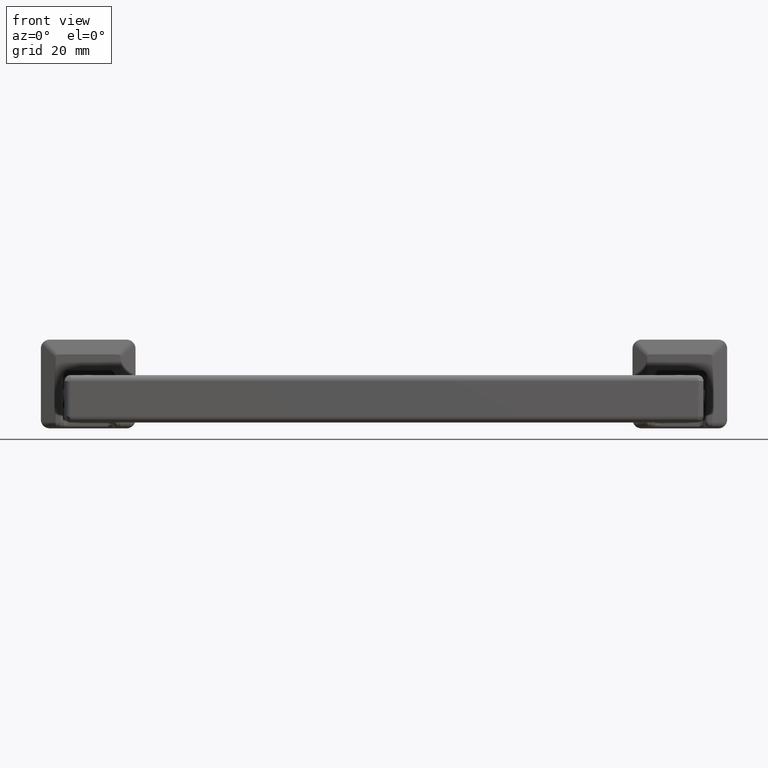
[diagram: clean part render]
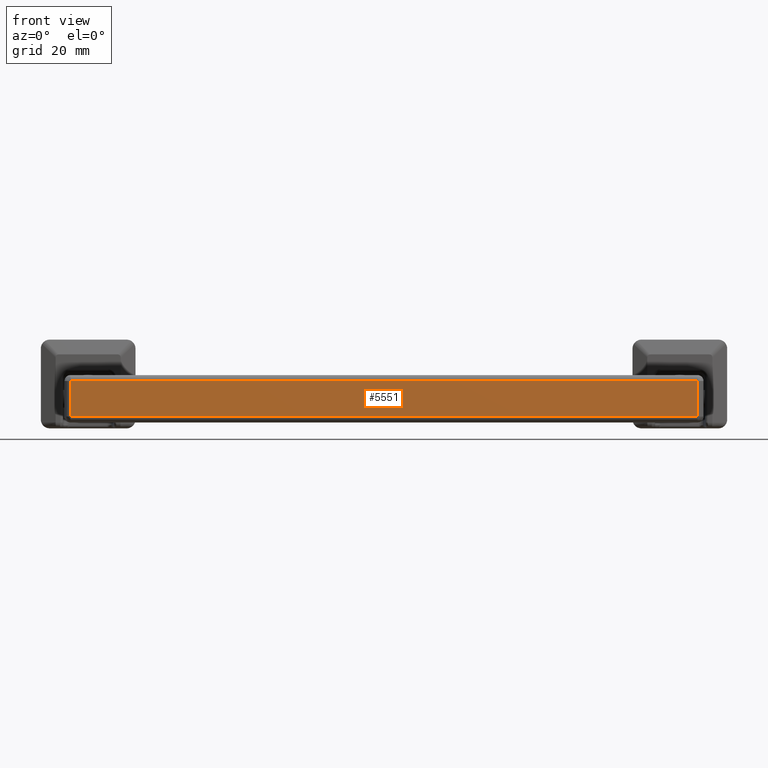
[diagram: same view with one face highlighted and labeled with its STEP entity id]
A machine part, front view. The second image highlights one B-rep face of the part: STEP entity #5551.
In plain terms, the highlighted face is a freeform B-spline surface patch.
Its self-contained STEP definition (entity closure, byte-faithful):
#4323=CARTESIAN_POINT('',(53.0,-3.0,40.0));
#4324=VERTEX_POINT('',#4323);
#4368=CARTESIAN_POINT('',(-53.0,-3.0,40.0));
#4369=VERTEX_POINT('',#4368);
#4391=CARTESIAN_POINT('',(-53.0,-3.0,40.0));
#4392=CARTESIAN_POINT('',(53.0,-3.0,40.0));
#4393=QUASI_UNIFORM_CURVE('',1,(#4391,#4392),.UNSPECIFIED.,.F.,.U.);
#4394=EDGE_CURVE('',#4369,#4324,#4393,.T.);
#5057=CARTESIAN_POINT('',(-53.0,2.999999999999890,40.0));
#5058=VERTEX_POINT('',#5057);
#5167=CARTESIAN_POINT('',(53.0,2.999999999999890,40.0));
#5168=VERTEX_POINT('',#5167);
#5190=CARTESIAN_POINT('',(53.0,2.999999999999890,40.0));
#5191=CARTESIAN_POINT('',(-53.0,2.999999999999890,40.0));
#5192=QUASI_UNIFORM_CURVE('',1,(#5190,#5191),.UNSPECIFIED.,.F.,.U.);
#5193=EDGE_CURVE('',#5168,#5058,#5192,.T.);
#5502=CARTESIAN_POINT('',(53.0,-3.0,40.0));
#5503=CARTESIAN_POINT('',(53.0,2.999999999999890,40.0));
#5504=QUASI_UNIFORM_CURVE('',1,(#5502,#5503),.UNSPECIFIED.,.F.,.U.);
#5505=EDGE_CURVE('',#4324,#5168,#5504,.T.);
#5525=CARTESIAN_POINT('',(-53.0,2.999999999999890,40.0));
#5526=CARTESIAN_POINT('',(-53.0,-3.0,40.0));
#5527=QUASI_UNIFORM_CURVE('',1,(#5525,#5526),.UNSPECIFIED.,.F.,.U.);
#5528=EDGE_CURVE('',#5058,#4369,#5527,.T.);
#5540=CARTESIAN_POINT('',(58.294699794551448,-3.299699988370831,40.0));
#5541=CARTESIAN_POINT('',(-58.294702637692993,-3.299699988370831,40.0));
#5542=CARTESIAN_POINT('',(58.294699794551448,3.299700149303261,40.0));
#5543=CARTESIAN_POINT('',(-58.294702637692993,3.299700149303261,40.0));
#5544=B_SPLINE_SURFACE_WITH_KNOTS('',1,1,((#5540,#5542),(#5541,#5543)),.UNSPECIFIED.,.F.,.F.,.U.,(2,2),(2,2),(0.0,116.589402432244400),(0.0,6.599400137674092),.UNSPECIFIED.);
#5545=ORIENTED_EDGE('',*,*,#5505,.T.);
#5546=ORIENTED_EDGE('',*,*,#5193,.T.);
#5547=ORIENTED_EDGE('',*,*,#5528,.T.);
#5548=ORIENTED_EDGE('',*,*,#4394,.T.);
#5549=EDGE_LOOP('',(#5545,#5546,#5547,#5548));
#5550=FACE_OUTER_BOUND('',#5549,.T.);
#5551=ADVANCED_FACE('',(#5550),#5544,.F.);